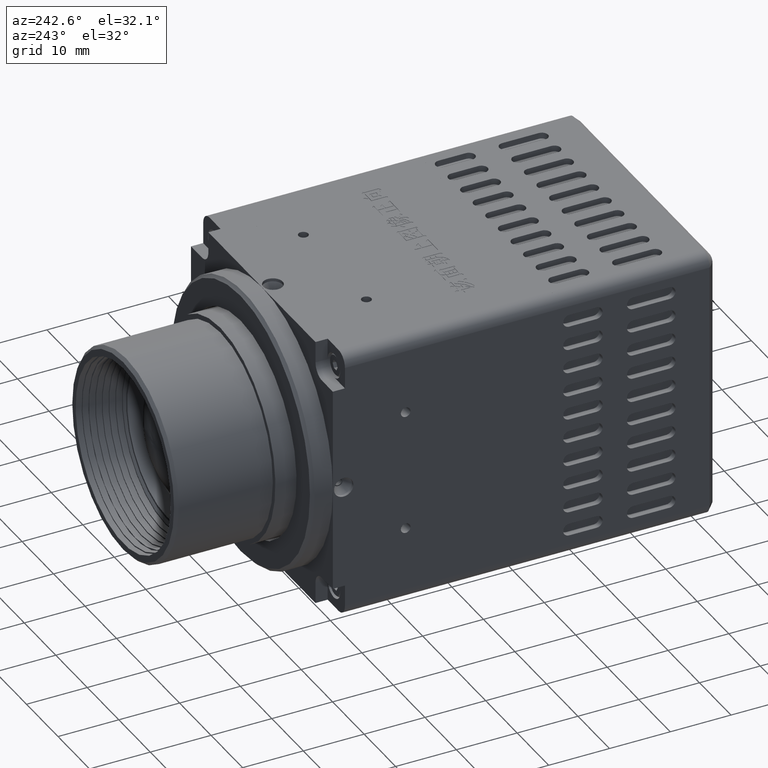
[diagram: clean part render]
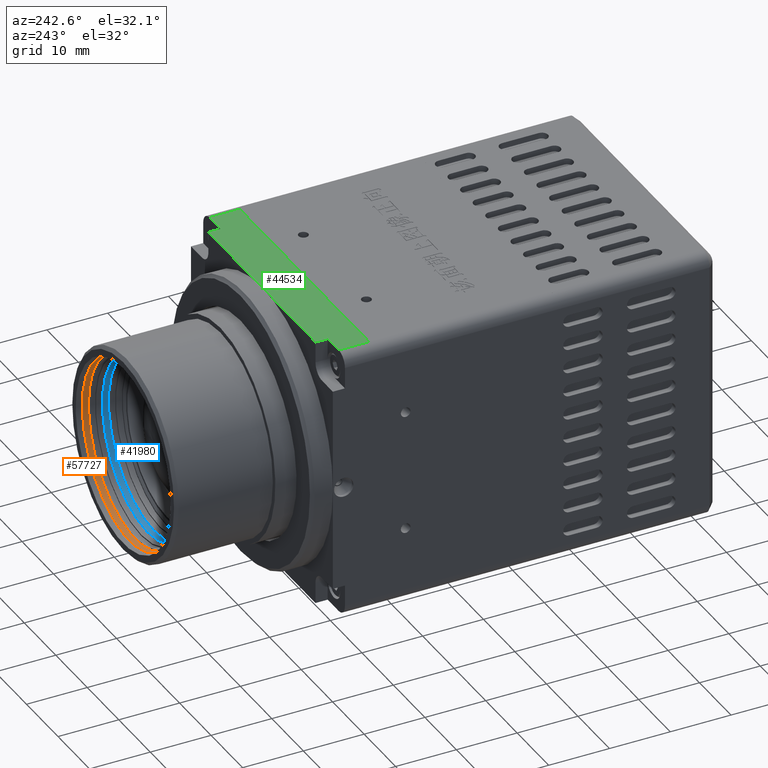
[diagram: same view with three faces highlighted in distinct colors, each labeled with its STEP entity id]
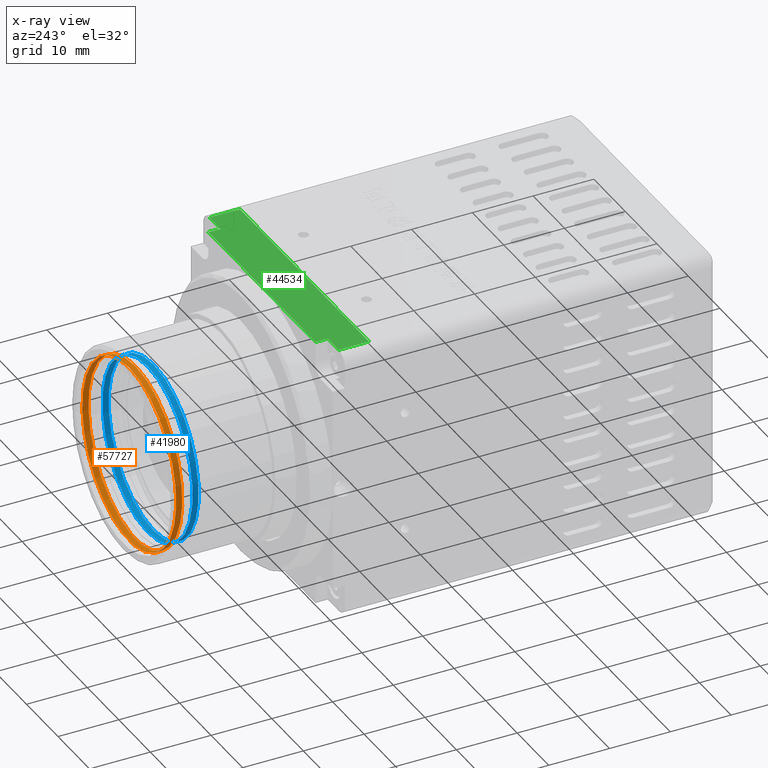
[diagram: x-ray of the same camera — body ghosted, the three highlighted faces saturated]
A machine part, auxiliary view with three faces highlighted in distinct colors.
The next image is the same camera in x-ray (body ghosted, the three faces saturated) — at least one of them is partly hidden behind the body in this view.
Their STEP definitions:

[orange] entity #57727 — the highlighted cylindrical surface (bore or boss wall) has radius 14.9 mm, axis along (0, 1, 0).
#4966 = CARTESIAN_POINT ( 'NONE',  ( -2.084271784497000633E-06, 41.73019999999999641, 14.90000452543679721 ) ) ;
#6935 = CARTESIAN_POINT ( 'NONE',  ( -2.084271784497000633E-06, 41.65331580733899841, 4.525436798704000192E-06 ) ) ;
#7441 = ORIENTED_EDGE ( 'NONE', *, *, #29540, .T. ) ;
#7459 = CARTESIAN_POINT ( 'NONE',  ( -2.084271784497000633E-06, 41.73019999999999641, 4.525436798704000192E-06 ) ) ;
#8013 = CIRCLE ( 'NONE', #9501, 14.90000000000000036 ) ;
#9501 = AXIS2_PLACEMENT_3D ( 'NONE', #7459, #92535, #28494 ) ;
#11551 = EDGE_LOOP ( 'NONE', ( #86802 ) ) ;
#11993 = VERTEX_POINT ( 'NONE', #4966 ) ;
#18839 = CIRCLE ( 'NONE', #90498, 14.90000000000000036 ) ;
#19130 = FACE_OUTER_BOUND ( 'NONE', #30937, .T. ) ;
#22199 = CARTESIAN_POINT ( 'NONE',  ( -2.084271784497000633E-06, 42.73019999999999641, 14.90000452543679721 ) ) ;
#23382 = CARTESIAN_POINT ( 'NONE',  ( -2.084271784497000633E-06, 42.73019999999999641, 4.525436798704000192E-06 ) ) ;
#26777 = AXIS2_PLACEMENT_3D ( 'NONE', #6935, #71456, #35912 ) ;
#27169 = EDGE_CURVE ( 'NONE', #11993, #11993, #8013, .T. ) ;
#27836 = VERTEX_POINT ( 'NONE', #22199 ) ;
#28494 = DIRECTION ( 'NONE',  ( 0.000000000000000000, 0.000000000000000000, 1.000000000000000000 ) ) ;
#29540 = EDGE_CURVE ( 'NONE', #27836, #27836, #18839, .T. ) ;
#30407 = DIRECTION ( 'NONE',  ( 0.000000000000000000, 0.000000000000000000, 1.000000000000000000 ) ) ;
#30937 = EDGE_LOOP ( 'NONE', ( #7441 ) ) ;
#35912 = DIRECTION ( 'NONE',  ( 0.000000000000000000, 0.000000000000000000, 1.000000000000000000 ) ) ;
#56517 = CYLINDRICAL_SURFACE ( 'NONE', #26777, 14.90000000000000036 ) ;
#57727 = ADVANCED_FACE ( 'NONE', ( #19130, #75262 ), #56517, .F. ) ;
#71456 = DIRECTION ( 'NONE',  ( 0.000000000000000000, 1.000000000000000000, 0.000000000000000000 ) ) ;
#72036 = DIRECTION ( 'NONE',  ( 0.000000000000000000, 1.000000000000000000, 0.000000000000000000 ) ) ;
#75262 = FACE_OUTER_BOUND ( 'NONE', #11551, .T. ) ;
#86802 = ORIENTED_EDGE ( 'NONE', *, *, #27169, .F. ) ;
#90498 = AXIS2_PLACEMENT_3D ( 'NONE', #23382, #72036, #30407 ) ;
#92535 = DIRECTION ( 'NONE',  ( 0.000000000000000000, 1.000000000000000000, 0.000000000000000000 ) ) ;

[blue] entity #41980 — the highlighted cylindrical surface (bore or boss wall) has radius 14.3 mm, axis along (0, 1, 0).
#3793 = VERTEX_POINT ( 'NONE', #32317 ) ;
#6201 = ORIENTED_EDGE ( 'NONE', *, *, #61358, .F. ) ;
#12886 = VERTEX_POINT ( 'NONE', #55435 ) ;
#13841 = ORIENTED_EDGE ( 'NONE', *, *, #76000, .T. ) ;
#14769 = EDGE_LOOP ( 'NONE', ( #6201 ) ) ;
#18711 = DIRECTION ( 'NONE',  ( 0.000000000000000000, 0.000000000000000000, 1.000000000000000000 ) ) ;
#19739 = CARTESIAN_POINT ( 'NONE',  ( -2.084271784497000633E-06, 38.73020000000029484, 4.525436798704000192E-06 ) ) ;
#21282 = AXIS2_PLACEMENT_3D ( 'NONE', #19739, #40329, #40789 ) ;
#31773 = CIRCLE ( 'NONE', #21282, 14.30000000000000071 ) ;
#32317 = CARTESIAN_POINT ( 'NONE',  ( -2.084271784497000633E-06, 38.73020000000029484, 14.30000452543679756 ) ) ;
#33199 = FACE_OUTER_BOUND ( 'NONE', #14769, .T. ) ;
#34177 = CIRCLE ( 'NONE', #81973, 14.30000000000000071 ) ;
#34583 = DIRECTION ( 'NONE',  ( 0.000000000000000000, 1.000000000000000000, 0.000000000000000000 ) ) ;
#37980 = DIRECTION ( 'NONE',  ( 0.000000000000000000, 1.000000000000000000, 0.000000000000000000 ) ) ;
#40329 = DIRECTION ( 'NONE',  ( 0.000000000000000000, 1.000000000000000000, 0.000000000000000000 ) ) ;
#40789 = DIRECTION ( 'NONE',  ( 0.000000000000000000, 0.000000000000000000, 1.000000000000000000 ) ) ;
#41980 = ADVANCED_FACE ( 'NONE', ( #62645, #33199 ), #55634, .F. ) ;
#48633 = CARTESIAN_POINT ( 'NONE',  ( -2.084271784497000633E-06, 38.65331580733860051, 4.525436798704000192E-06 ) ) ;
#52401 = AXIS2_PLACEMENT_3D ( 'NONE', #48633, #34583, #18711 ) ;
#53128 = EDGE_LOOP ( 'NONE', ( #13841 ) ) ;
#55435 = CARTESIAN_POINT ( 'NONE',  ( -2.084271784497000633E-06, 39.73020000000000351, 14.30000452543679756 ) ) ;
#55634 = CYLINDRICAL_SURFACE ( 'NONE', #52401, 14.30000000000000071 ) ;
#61358 = EDGE_CURVE ( 'NONE', #3793, #3793, #31773, .T. ) ;
#62645 = FACE_OUTER_BOUND ( 'NONE', #53128, .T. ) ;
#68225 = DIRECTION ( 'NONE',  ( 0.000000000000000000, 0.000000000000000000, 1.000000000000000000 ) ) ;
#75703 = CARTESIAN_POINT ( 'NONE',  ( -2.084271784497000633E-06, 39.73020000000000351, 4.525436798704000192E-06 ) ) ;
#76000 = EDGE_CURVE ( 'NONE', #12886, #12886, #34177, .T. ) ;
#81973 = AXIS2_PLACEMENT_3D ( 'NONE', #75703, #37980, #68225 ) ;

[green] entity #44534 — the highlighted planar face has unit normal (0, 0, 1).
#345 = EDGE_CURVE ( 'NONE', #25133, #24628, #76086, .T. ) ;
#972 = EDGE_CURVE ( 'NONE', #31889, #60476, #49307, .T. ) ;
#2112 = CARTESIAN_POINT ( 'NONE',  ( 16.99999791572821906, 13.90019999999999989, 22.50000452543680041 ) ) ;
#3165 = CARTESIAN_POINT ( 'NONE',  ( -2.084271784497000633E-06, 19.10020000000000095, 22.50000452543680041 ) ) ;
#3834 = LINE ( 'NONE', #74916, #31446 ) ;
#6569 = AXIS2_PLACEMENT_3D ( 'NONE', #3165, #9248, #25112 ) ;
#6688 = LINE ( 'NONE', #83390, #76033 ) ;
#7506 = FACE_BOUND ( 'NONE', #89958, .T. ) ;
#9248 = DIRECTION ( 'NONE',  ( 0.000000000000000000, 0.000000000000000000, -1.000000000000000000 ) ) ;
#12062 = CARTESIAN_POINT ( 'NONE',  ( 20.49999791572821550, 18.90019999999999811, 22.50000452543680041 ) ) ;
#12339 = CARTESIAN_POINT ( 'NONE',  ( 16.99999791572821906, 18.90019999999999811, 22.50000452543680396 ) ) ;
#12990 = VECTOR ( 'NONE', #36003, 1000.000000000000000 ) ;
#13290 = CARTESIAN_POINT ( 'NONE',  ( -17.00000208427178450, 13.90019999999999989, 22.50000452543680041 ) ) ;
#13576 = VERTEX_POINT ( 'NONE', #30704 ) ;
#16598 = DIRECTION ( 'NONE',  ( -0.000000000000000000, 1.000000000000000000, 0.000000000000000000 ) ) ;
#17177 = VERTEX_POINT ( 'NONE', #17218 ) ;
#17218 = CARTESIAN_POINT ( 'NONE',  ( 16.99999791572821906, 20.90020000000000167, 22.50000452543680396 ) ) ;
#18805 = ORIENTED_EDGE ( 'NONE', *, *, #34878, .T. ) ;
#19173 = LINE ( 'NONE', #84596, #87478 ) ;
#21188 = VECTOR ( 'NONE', #24653, 1000.000000000000000 ) ;
#21523 = CARTESIAN_POINT ( 'NONE',  ( -22.50000208427178094, 18.90019999999999811, 22.50000452543680041 ) ) ;
#21997 = DIRECTION ( 'NONE',  ( 0.000000000000000000, 0.000000000000000000, 1.000000000000000000 ) ) ;
#22044 = EDGE_CURVE ( 'NONE', #17177, #51463, #19173, .T. ) ;
#23592 = ORIENTED_EDGE ( 'NONE', *, *, #70286, .T. ) ;
#24628 = VERTEX_POINT ( 'NONE', #72858 ) ;
#24653 = DIRECTION ( 'NONE',  ( 0.000000000000000000, -1.000000000000000000, -0.000000000000000000 ) ) ;
#25112 = DIRECTION ( 'NONE',  ( -1.000000000000000000, 0.000000000000000000, 0.000000000000000000 ) ) ;
#25133 = VERTEX_POINT ( 'NONE', #89540 ) ;
#28297 = EDGE_LOOP ( 'NONE', ( #48835, #89529, #82226, #23592, #65001, #60023, #57621, #66919, #18805 ) ) ;
#28719 = EDGE_CURVE ( 'NONE', #73371, #17177, #66156, .T. ) ;
#29469 = PLANE ( 'NONE',  #66116 ) ;
#30704 = CARTESIAN_POINT ( 'NONE',  ( -1.600002084271784586, 19.10020000000000095, 22.50000452543680041 ) ) ;
#31446 = VECTOR ( 'NONE', #61334, 1000.000000000000000 ) ;
#31889 = VERTEX_POINT ( 'NONE', #53728 ) ;
#34878 = EDGE_CURVE ( 'NONE', #51463, #31889, #44302, .T. ) ;
#36003 = DIRECTION ( 'NONE',  ( -1.000000000000000000, -0.000000000000000000, 0.000000000000000000 ) ) ;
#40538 = CARTESIAN_POINT ( 'NONE',  ( -20.50000208427178450, 13.90019999999999989, 22.50000452543680041 ) ) ;
#42057 = DIRECTION ( 'NONE',  ( -1.000000000000000000, -0.000000000000000000, 0.000000000000000000 ) ) ;
#44302 = LINE ( 'NONE', #78449, #73021 ) ;
#44534 = ADVANCED_FACE ( 'NONE', ( #7506, #49617 ), #29469, .T. ) ;
#48800 = DIRECTION ( 'NONE',  ( -1.000000000000000000, -0.000000000000000000, 0.000000000000000000 ) ) ;
#48835 = ORIENTED_EDGE ( 'NONE', *, *, #972, .T. ) ;
#49307 = LINE ( 'NONE', #13290, #61597 ) ;
#49617 = FACE_OUTER_BOUND ( 'NONE', #28297, .T. ) ;
#51463 = VERTEX_POINT ( 'NONE', #65301 ) ;
#51480 = CARTESIAN_POINT ( 'NONE',  ( -2.084271784497000633E-06, 13.90019999999999989, 22.50000452543680041 ) ) ;
#51994 = CARTESIAN_POINT ( 'NONE',  ( 20.49999791572821906, 13.90019999999999989, 22.50000452543680041 ) ) ;
#53141 = EDGE_CURVE ( 'NONE', #60476, #25133, #79024, .T. ) ;
#53728 = CARTESIAN_POINT ( 'NONE',  ( -17.00000208427178450, 20.90020000000000167, 22.50000452543680396 ) ) ;
#56028 = VECTOR ( 'NONE', #16598, 1000.000000000000000 ) ;
#57621 = ORIENTED_EDGE ( 'NONE', *, *, #28719, .T. ) ;
#60023 = ORIENTED_EDGE ( 'NONE', *, *, #75766, .T. ) ;
#60476 = VERTEX_POINT ( 'NONE', #75399 ) ;
#60565 = VECTOR ( 'NONE', #78137, 1000.000000000000000 ) ;
#61334 = DIRECTION ( 'NONE',  ( 0.000000000000000000, -1.000000000000000000, 0.000000000000000000 ) ) ;
#61597 = VECTOR ( 'NONE', #69875, 1000.000000000000000 ) ;
#62074 = VERTEX_POINT ( 'NONE', #12062 ) ;
#64089 = DIRECTION ( 'NONE',  ( 1.000000000000000000, 0.000000000000000000, -0.000000000000000000 ) ) ;
#65001 = ORIENTED_EDGE ( 'NONE', *, *, #77306, .F. ) ;
#65301 = CARTESIAN_POINT ( 'NONE',  ( -2.084272764615764560E-06, 20.90020000000000167, 22.50000452543680041 ) ) ;
#66116 = AXIS2_PLACEMENT_3D ( 'NONE', #78123, #21997, #64089 ) ;
#66156 = LINE ( 'NONE', #2112, #56028 ) ;
#66919 = ORIENTED_EDGE ( 'NONE', *, *, #22044, .T. ) ;
#67188 = EDGE_CURVE ( 'NONE', #13576, #13576, #91653, .T. ) ;
#69875 = DIRECTION ( 'NONE',  ( 0.000000000000000000, -1.000000000000000000, -0.000000000000000000 ) ) ;
#70286 = EDGE_CURVE ( 'NONE', #24628, #84826, #71138, .T. ) ;
#71138 = LINE ( 'NONE', #51480, #60565 ) ;
#71849 = ORIENTED_EDGE ( 'NONE', *, *, #67188, .T. ) ;
#72858 = CARTESIAN_POINT ( 'NONE',  ( -20.50000208427178450, 13.90019999999999989, 22.50000452543680041 ) ) ;
#73021 = VECTOR ( 'NONE', #91998, 1000.000000000000000 ) ;
#73371 = VERTEX_POINT ( 'NONE', #12339 ) ;
#74916 = CARTESIAN_POINT ( 'NONE',  ( 20.49999791572821906, 35.78439999999999799, 22.50000452543680041 ) ) ;
#75399 = CARTESIAN_POINT ( 'NONE',  ( -17.00000208427178450, 18.90019999999999811, 22.50000452543680396 ) ) ;
#75766 = EDGE_CURVE ( 'NONE', #62074, #73371, #6688, .T. ) ;
#76033 = VECTOR ( 'NONE', #48800, 1000.000000000000000 ) ;
#76086 = LINE ( 'NONE', #40538, #21188 ) ;
#77306 = EDGE_CURVE ( 'NONE', #62074, #84826, #3834, .T. ) ;
#78123 = CARTESIAN_POINT ( 'NONE',  ( -22.50000208427178094, 13.90019999999999989, 22.50000452543680041 ) ) ;
#78137 = DIRECTION ( 'NONE',  ( 1.000000000000000000, 0.000000000000000000, 0.000000000000000000 ) ) ;
#78449 = CARTESIAN_POINT ( 'NONE',  ( -22.50000208427178094, 20.90020000000000167, 22.50000452543680041 ) ) ;
#79024 = LINE ( 'NONE', #21523, #12990 ) ;
#82226 = ORIENTED_EDGE ( 'NONE', *, *, #345, .T. ) ;
#83390 = CARTESIAN_POINT ( 'NONE',  ( -22.50000208427178094, 18.90019999999999811, 22.50000452543680041 ) ) ;
#84596 = CARTESIAN_POINT ( 'NONE',  ( -22.50000208427178094, 20.90020000000000167, 22.50000452543680041 ) ) ;
#84826 = VERTEX_POINT ( 'NONE', #51994 ) ;
#87478 = VECTOR ( 'NONE', #42057, 1000.000000000000000 ) ;
#89529 = ORIENTED_EDGE ( 'NONE', *, *, #53141, .T. ) ;
#89540 = CARTESIAN_POINT ( 'NONE',  ( -20.50000208427178450, 18.90019999999999811, 22.50000452543680041 ) ) ;
#89958 = EDGE_LOOP ( 'NONE', ( #71849 ) ) ;
#91653 = CIRCLE ( 'NONE', #6569, 1.600000000000000089 ) ;
#91998 = DIRECTION ( 'NONE',  ( -1.000000000000000000, -0.000000000000000000, 0.000000000000000000 ) ) ;